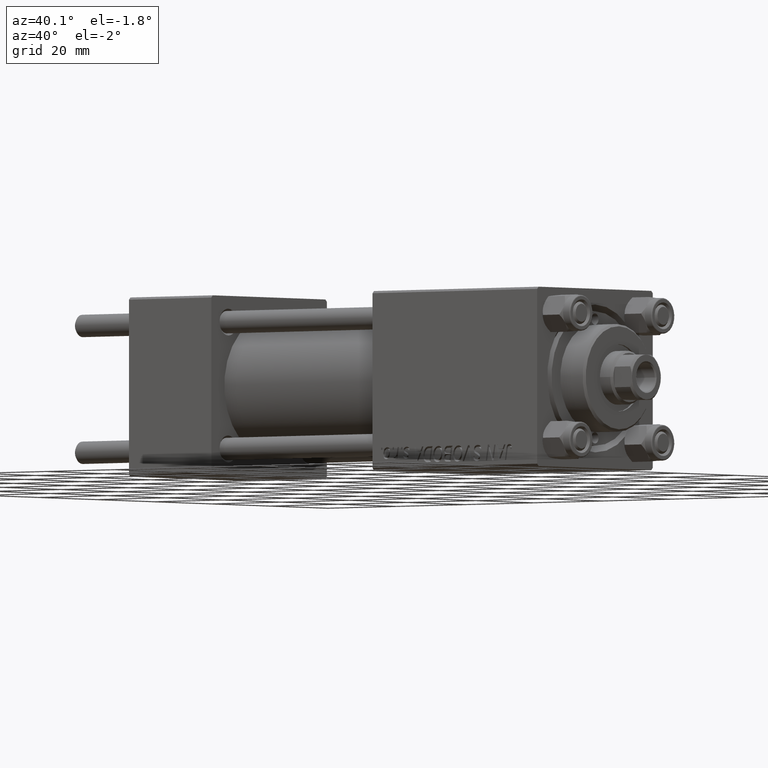
[diagram: clean part render]
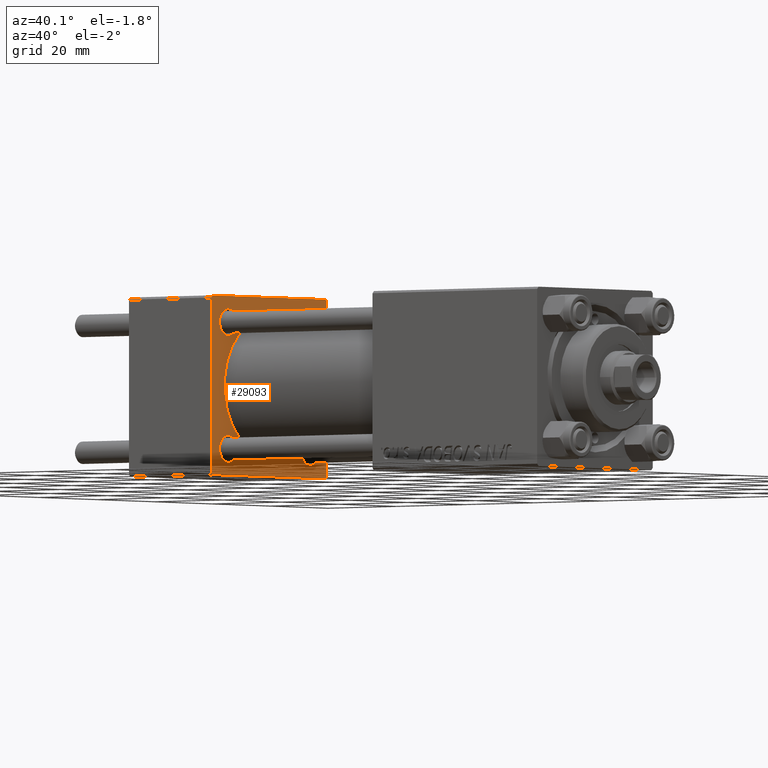
[diagram: same view with one face highlighted and labeled with its STEP entity id]
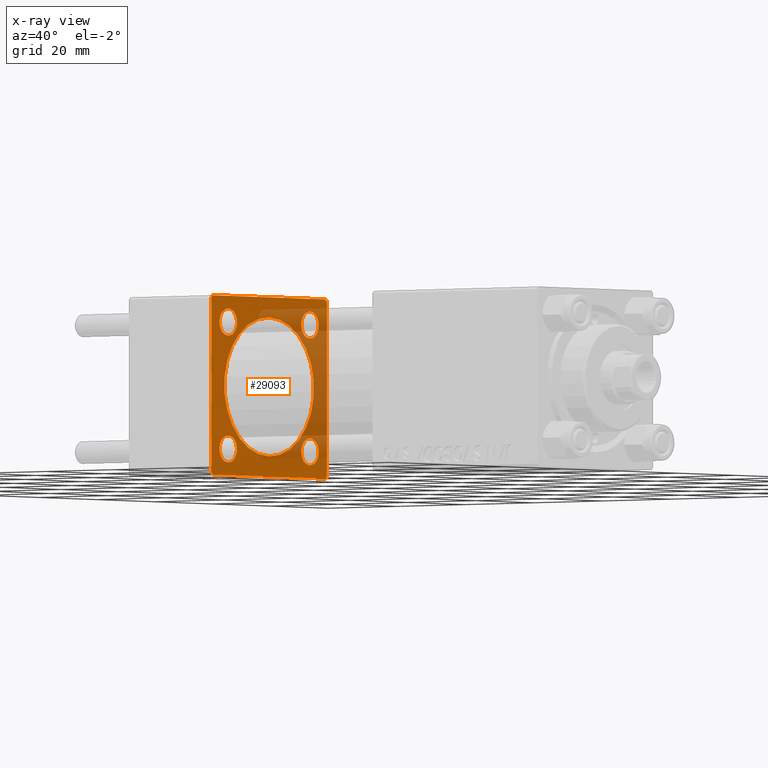
[diagram: x-ray of the same camera — body ghosted, the highlighted face saturated]
A machine part, auxiliary view. The second image highlights one B-rep face of the part: STEP entity #29093.
The next image is the same camera in x-ray: the body ghosted, the highlighted face saturated — about 34% of this face is hidden behind the body in this view.
In plain terms, the highlighted planar face has unit normal (-1, 0, 0).
Its self-contained STEP definition (entity closure, byte-faithful):
#105 = LINE ( 'NONE', #41500, #12896 ) ;
#116 = EDGE_LOOP ( 'NONE', ( #17123, #17661 ) ) ;
#353 = DIRECTION ( 'NONE',  ( 0.000000000000000000, 0.000000000000000000, -1.000000000000000000 ) ) ;
#759 = VERTEX_POINT ( 'NONE', #43805 ) ;
#784 = CIRCLE ( 'NONE', #7224, 3.000000000000000888 ) ;
#1263 = ORIENTED_EDGE ( 'NONE', *, *, #5832, .T. ) ;
#1264 = FACE_BOUND ( 'NONE', #14118, .T. ) ;
#1994 = CIRCLE ( 'NONE', #11718, 2.999999999999976463 ) ;
#2460 = DIRECTION ( 'NONE',  ( -1.000000000000000000, -0.000000000000000000, -0.000000000000000000 ) ) ;
#3033 = DIRECTION ( 'NONE',  ( 0.000000000000000000, 0.000000000000000000, 1.000000000000000000 ) ) ;
#3468 = VERTEX_POINT ( 'NONE', #23424 ) ;
#3586 = CARTESIAN_POINT ( 'NONE',  ( 24.00000000000000000, 14.14999999999999858, 14.15000000000000036 ) ) ;
#3909 = CARTESIAN_POINT ( 'NONE',  ( 24.00000000000000000, 20.00000000000000000, 20.00000000000000000 ) ) ;
#4076 = CARTESIAN_POINT ( 'NONE',  ( 24.00000000000000000, -14.14999999999999503, -17.15000000000000568 ) ) ;
#4308 = CARTESIAN_POINT ( 'NONE',  ( 24.00000000000000000, 20.00000000000000000, -19.50000000000002132 ) ) ;
#4506 = DIRECTION ( 'NONE',  ( 1.000000000000000000, 0.000000000000000000, 0.000000000000000000 ) ) ;
#4995 = CIRCLE ( 'NONE', #47690, 15.50000000000000000 ) ;
#5065 = FACE_OUTER_BOUND ( 'NONE', #39022, .T. ) ;
#5448 = VERTEX_POINT ( 'NONE', #22168 ) ;
#5547 = DIRECTION ( 'NONE',  ( -0.000000000000000000, 0.000000000000000000, 1.000000000000000000 ) ) ;
#5792 = CARTESIAN_POINT ( 'NONE',  ( 24.00000000000000000, -20.00000000000000355, 19.49999999999998224 ) ) ;
#5832 = EDGE_CURVE ( 'NONE', #35848, #12994, #11752, .T. ) ;
#5898 = CARTESIAN_POINT ( 'NONE',  ( 24.00000000000000000, -14.14999999999999503, -11.15000000000000391 ) ) ;
#6590 = VERTEX_POINT ( 'NONE', #16559 ) ;
#7224 = AXIS2_PLACEMENT_3D ( 'NONE', #31366, #19509, #24295 ) ;
#8109 = LINE ( 'NONE', #4308, #10701 ) ;
#8145 = ORIENTED_EDGE ( 'NONE', *, *, #49571, .T. ) ;
#8211 = CARTESIAN_POINT ( 'NONE',  ( 24.00000000000000000, -19.50000000000000711, -20.00000000000000000 ) ) ;
#8703 = DIRECTION ( 'NONE',  ( 0.000000000000000000, 0.7071067811865401342, -0.7071067811865549002 ) ) ;
#8752 = CIRCLE ( 'NONE', #49818, 3.000000000000000888 ) ;
#9332 = CARTESIAN_POINT ( 'NONE',  ( 24.00000000000000000, -14.14999999999999503, 17.15000000000000568 ) ) ;
#9495 = DIRECTION ( 'NONE',  ( 0.000000000000000000, -0.7071067811865425767, 0.7071067811865525687 ) ) ;
#9519 = CARTESIAN_POINT ( 'NONE',  ( 24.00000000000000000, 20.00000000000000000, 19.49999999999999289 ) ) ;
#9674 = VERTEX_POINT ( 'NONE', #38147 ) ;
#10278 = CIRCLE ( 'NONE', #34474, 3.000000000000000888 ) ;
#10701 = VECTOR ( 'NONE', #30577, 1000.000000000000000 ) ;
#10706 = VERTEX_POINT ( 'NONE', #4076 ) ;
#11257 = VERTEX_POINT ( 'NONE', #9519 ) ;
#11474 = CIRCLE ( 'NONE', #28424, 15.50000000000000000 ) ;
#11718 = AXIS2_PLACEMENT_3D ( 'NONE', #33606, #37393, #49000 ) ;
#11752 = LINE ( 'NONE', #3909, #39174 ) ;
#12220 = VECTOR ( 'NONE', #8703, 1000.000000000000000 ) ;
#12231 = CARTESIAN_POINT ( 'NONE',  ( 24.00000000000000000, -14.14999999999999503, -14.15000000000000391 ) ) ;
#12589 = ORIENTED_EDGE ( 'NONE', *, *, #47878, .T. ) ;
#12896 = VECTOR ( 'NONE', #22847, 1000.000000000000000 ) ;
#12920 = DIRECTION ( 'NONE',  ( 0.000000000000000000, 0.000000000000000000, 1.000000000000000000 ) ) ;
#12994 = VERTEX_POINT ( 'NONE', #16321 ) ;
#13410 = EDGE_LOOP ( 'NONE', ( #47782, #14991 ) ) ;
#13731 = CARTESIAN_POINT ( 'NONE',  ( 24.00000000000000000, -20.00000000000000355, 19.99999999999998934 ) ) ;
#14017 = EDGE_CURVE ( 'NONE', #45669, #45728, #10278, .T. ) ;
#14118 = EDGE_LOOP ( 'NONE', ( #23809, #29408 ) ) ;
#14665 = ORIENTED_EDGE ( 'NONE', *, *, #36949, .F. ) ;
#14940 = CARTESIAN_POINT ( 'NONE',  ( 24.00000000000000000, -20.00000000000000355, 19.49999999999998224 ) ) ;
#14991 = ORIENTED_EDGE ( 'NONE', *, *, #32930, .T. ) ;
#15280 = CARTESIAN_POINT ( 'NONE',  ( 24.00000000000000000, 20.00000000000000000, 20.00000000000000000 ) ) ;
#16321 = CARTESIAN_POINT ( 'NONE',  ( 24.00000000000000000, -19.49999999999999289, 19.99999999999998934 ) ) ;
#16559 = CARTESIAN_POINT ( 'NONE',  ( 24.00000000000000000, 19.50000000000000711, -20.00000000000000711 ) ) ;
#16724 = CARTESIAN_POINT ( 'NONE',  ( 24.00000000000000000, 14.14999999999999858, 14.15000000000000036 ) ) ;
#17123 = ORIENTED_EDGE ( 'NONE', *, *, #47057, .F. ) ;
#17661 = ORIENTED_EDGE ( 'NONE', *, *, #45891, .F. ) ;
#18362 = CARTESIAN_POINT ( 'NONE',  ( 24.00000000000000000, 20.00000000000000000, -19.50000000000002132 ) ) ;
#19014 = DIRECTION ( 'NONE',  ( 0.000000000000000000, 0.000000000000000000, 1.000000000000000000 ) ) ;
#19050 = DIRECTION ( 'NONE',  ( -1.000000000000000000, -0.000000000000000000, -0.000000000000000000 ) ) ;
#19509 = DIRECTION ( 'NONE',  ( -1.000000000000000000, -0.000000000000000000, -0.000000000000000000 ) ) ;
#19551 = DIRECTION ( 'NONE',  ( -1.000000000000000000, -0.000000000000000000, -0.000000000000000000 ) ) ;
#19627 = CARTESIAN_POINT ( 'NONE',  ( 24.00000000000000000, 0.000000000000000000, 0.000000000000000000 ) ) ;
#19833 = VERTEX_POINT ( 'NONE', #5898 ) ;
#19877 = DIRECTION ( 'NONE',  ( 0.000000000000000000, 0.000000000000000000, 1.000000000000000000 ) ) ;
#20126 = DIRECTION ( 'NONE',  ( 1.000000000000000000, 0.000000000000000000, 0.000000000000000000 ) ) ;
#20252 = FACE_BOUND ( 'NONE', #26591, .T. ) ;
#21628 = LINE ( 'NONE', #23767, #38094 ) ;
#21704 = CARTESIAN_POINT ( 'NONE',  ( 24.00000000000000000, -14.14999999999999503, 11.15000000000000391 ) ) ;
#21864 = CIRCLE ( 'NONE', #24338, 2.999999999999976463 ) ;
#22168 = CARTESIAN_POINT ( 'NONE',  ( 24.00000000000000000, -20.00000000000000000, -19.49999999999999645 ) ) ;
#22499 = DIRECTION ( 'NONE',  ( -1.000000000000000000, -0.000000000000000000, -0.000000000000000000 ) ) ;
#22571 = CARTESIAN_POINT ( 'NONE',  ( 24.00000000000000000, -14.14999999999999503, 14.15000000000000391 ) ) ;
#22768 = AXIS2_PLACEMENT_3D ( 'NONE', #12231, #19050, #34433 ) ;
#22847 = DIRECTION ( 'NONE',  ( 0.000000000000000000, -1.000000000000000000, 1.734723475976807094E-16 ) ) ;
#23249 = ORIENTED_EDGE ( 'NONE', *, *, #44533, .T. ) ;
#23424 = CARTESIAN_POINT ( 'NONE',  ( 24.00000000000000000, 14.14999999999999858, -11.15000000000002700 ) ) ;
#23756 = DIRECTION ( 'NONE',  ( 0.000000000000000000, 0.000000000000000000, 1.000000000000000000 ) ) ;
#23767 = CARTESIAN_POINT ( 'NONE',  ( 24.00000000000000000, 19.50000000000000000, 20.00000000000000000 ) ) ;
#23809 = ORIENTED_EDGE ( 'NONE', *, *, #46546, .T. ) ;
#24295 = DIRECTION ( 'NONE',  ( 0.000000000000000000, 0.000000000000000000, 1.000000000000000000 ) ) ;
#24338 = AXIS2_PLACEMENT_3D ( 'NONE', #47441, #47201, #23756 ) ;
#24516 = PLANE ( 'NONE',  #39281 ) ;
#25068 = CIRCLE ( 'NONE', #47617, 2.999999999999976463 ) ;
#25510 = EDGE_CURVE ( 'NONE', #9674, #38387, #25068, .T. ) ;
#25858 = EDGE_CURVE ( 'NONE', #5448, #759, #27910, .T. ) ;
#26591 = EDGE_LOOP ( 'NONE', ( #39960, #28499 ) ) ;
#27202 = EDGE_CURVE ( 'NONE', #46291, #3468, #1994, .T. ) ;
#27910 = LINE ( 'NONE', #8211, #12220 ) ;
#28309 = FACE_BOUND ( 'NONE', #13410, .T. ) ;
#28331 = ORIENTED_EDGE ( 'NONE', *, *, #48701, .T. ) ;
#28424 = AXIS2_PLACEMENT_3D ( 'NONE', #19627, #20126, #19877 ) ;
#28499 = ORIENTED_EDGE ( 'NONE', *, *, #43502, .T. ) ;
#28882 = DIRECTION ( 'NONE',  ( 0.000000000000000000, 8.673617379884036705E-17, -1.000000000000000000 ) ) ;
#29093 = ADVANCED_FACE ( 'NONE', ( #1264, #47474, #28309, #20252, #43681, #5065 ), #24516, .F. ) ;
#29408 = ORIENTED_EDGE ( 'NONE', *, *, #36616, .T. ) ;
#29499 = VERTEX_POINT ( 'NONE', #18362 ) ;
#30088 = DIRECTION ( 'NONE',  ( -0.000000000000000000, -0.7071067811865500152, -0.7071067811865451302 ) ) ;
#30162 = CARTESIAN_POINT ( 'NONE',  ( 24.00000000000000000, 19.50000000000000000, 20.00000000000000000 ) ) ;
#30577 = DIRECTION ( 'NONE',  ( -0.000000000000000000, 0.7071067811865524577, 0.7071067811865426878 ) ) ;
#30909 = CARTESIAN_POINT ( 'NONE',  ( 24.00000000000000000, 0.000000000000000000, 15.50000000000000000 ) ) ;
#30952 = VECTOR ( 'NONE', #30088, 1000.000000000000114 ) ;
#31366 = CARTESIAN_POINT ( 'NONE',  ( 24.00000000000000000, -14.14999999999999503, -14.15000000000000391 ) ) ;
#32160 = ORIENTED_EDGE ( 'NONE', *, *, #42503, .F. ) ;
#32328 = CARTESIAN_POINT ( 'NONE',  ( 24.00000000000000000, 0.000000000000000000, 0.000000000000000000 ) ) ;
#32489 = CARTESIAN_POINT ( 'NONE',  ( 24.00000000000000000, 1.898202538678397557E-15, -15.50000000000000000 ) ) ;
#32930 = EDGE_CURVE ( 'NONE', #45728, #45669, #8752, .T. ) ;
#33606 = CARTESIAN_POINT ( 'NONE',  ( 24.00000000000000000, 14.14999999999999858, -14.15000000000000036 ) ) ;
#33649 = EDGE_LOOP ( 'NONE', ( #47968, #35434 ) ) ;
#33956 = VECTOR ( 'NONE', #28882, 1000.000000000000000 ) ;
#34433 = DIRECTION ( 'NONE',  ( 0.000000000000000000, 0.000000000000000000, 1.000000000000000000 ) ) ;
#34447 = LINE ( 'NONE', #15280, #36294 ) ;
#34474 = AXIS2_PLACEMENT_3D ( 'NONE', #22571, #19551, #34926 ) ;
#34926 = DIRECTION ( 'NONE',  ( 0.000000000000000000, 0.000000000000000000, 1.000000000000000000 ) ) ;
#35434 = ORIENTED_EDGE ( 'NONE', *, *, #43911, .T. ) ;
#35795 = CARTESIAN_POINT ( 'NONE',  ( 24.00000000000000000, 0.000000000000000000, 0.000000000000000000 ) ) ;
#35848 = VERTEX_POINT ( 'NONE', #30162 ) ;
#36294 = VECTOR ( 'NONE', #353, 1000.000000000000000 ) ;
#36616 = EDGE_CURVE ( 'NONE', #19833, #10706, #784, .T. ) ;
#36949 = EDGE_CURVE ( 'NONE', #6590, #759, #105, .T. ) ;
#37393 = DIRECTION ( 'NONE',  ( -1.000000000000000000, -0.000000000000000000, -0.000000000000000000 ) ) ;
#37628 = CARTESIAN_POINT ( 'NONE',  ( 24.00000000000000000, -14.14999999999999503, 14.15000000000000391 ) ) ;
#38094 = VECTOR ( 'NONE', #9495, 999.9999999999998863 ) ;
#38147 = CARTESIAN_POINT ( 'NONE',  ( 24.00000000000000000, 14.14999999999999858, 11.15000000000002700 ) ) ;
#38387 = VERTEX_POINT ( 'NONE', #47984 ) ;
#38872 = CIRCLE ( 'NONE', #22768, 3.000000000000000888 ) ;
#39022 = EDGE_LOOP ( 'NONE', ( #14665, #28331, #32160, #12589, #1263, #8145, #23249, #49483 ) ) ;
#39174 = VECTOR ( 'NONE', #42539, 1000.000000000000000 ) ;
#39281 = AXIS2_PLACEMENT_3D ( 'NONE', #32328, #46992, #5547 ) ;
#39960 = ORIENTED_EDGE ( 'NONE', *, *, #25510, .T. ) ;
#40247 = CARTESIAN_POINT ( 'NONE',  ( 24.00000000000000000, 14.14999999999999858, -17.14999999999997726 ) ) ;
#41500 = CARTESIAN_POINT ( 'NONE',  ( 24.00000000000000000, 20.00000000000000000, -20.00000000000000711 ) ) ;
#41646 = VERTEX_POINT ( 'NONE', #30909 ) ;
#41933 = LINE ( 'NONE', #14940, #30952 ) ;
#42366 = DIRECTION ( 'NONE',  ( 0.000000000000000000, 0.000000000000000000, 1.000000000000000000 ) ) ;
#42503 = EDGE_CURVE ( 'NONE', #11257, #29499, #34447, .T. ) ;
#42539 = DIRECTION ( 'NONE',  ( 0.000000000000000000, -1.000000000000000000, -2.602085213965210149E-16 ) ) ;
#43502 = EDGE_CURVE ( 'NONE', #38387, #9674, #43585, .T. ) ;
#43585 = CIRCLE ( 'NONE', #49229, 2.999999999999976463 ) ;
#43681 = FACE_BOUND ( 'NONE', #116, .T. ) ;
#43805 = CARTESIAN_POINT ( 'NONE',  ( 24.00000000000000000, -19.50000000000000711, -20.00000000000000000 ) ) ;
#43911 = EDGE_CURVE ( 'NONE', #3468, #46291, #21864, .T. ) ;
#44508 = LINE ( 'NONE', #13731, #33956 ) ;
#44533 = EDGE_CURVE ( 'NONE', #49768, #5448, #44508, .T. ) ;
#45669 = VERTEX_POINT ( 'NONE', #21704 ) ;
#45728 = VERTEX_POINT ( 'NONE', #9332 ) ;
#45891 = EDGE_CURVE ( 'NONE', #46019, #41646, #4995, .T. ) ;
#46019 = VERTEX_POINT ( 'NONE', #32489 ) ;
#46254 = DIRECTION ( 'NONE',  ( -1.000000000000000000, -0.000000000000000000, -0.000000000000000000 ) ) ;
#46291 = VERTEX_POINT ( 'NONE', #40247 ) ;
#46546 = EDGE_CURVE ( 'NONE', #10706, #19833, #38872, .T. ) ;
#46992 = DIRECTION ( 'NONE',  ( -1.000000000000000000, 0.000000000000000000, -0.000000000000000000 ) ) ;
#47057 = EDGE_CURVE ( 'NONE', #41646, #46019, #11474, .T. ) ;
#47201 = DIRECTION ( 'NONE',  ( -1.000000000000000000, -0.000000000000000000, -0.000000000000000000 ) ) ;
#47441 = CARTESIAN_POINT ( 'NONE',  ( 24.00000000000000000, 14.14999999999999858, -14.15000000000000036 ) ) ;
#47474 = FACE_BOUND ( 'NONE', #33649, .T. ) ;
#47617 = AXIS2_PLACEMENT_3D ( 'NONE', #16724, #2460, #12920 ) ;
#47690 = AXIS2_PLACEMENT_3D ( 'NONE', #35795, #4506, #42366 ) ;
#47782 = ORIENTED_EDGE ( 'NONE', *, *, #14017, .T. ) ;
#47878 = EDGE_CURVE ( 'NONE', #11257, #35848, #21628, .T. ) ;
#47968 = ORIENTED_EDGE ( 'NONE', *, *, #27202, .T. ) ;
#47984 = CARTESIAN_POINT ( 'NONE',  ( 24.00000000000000000, 14.14999999999999858, 17.14999999999997726 ) ) ;
#48701 = EDGE_CURVE ( 'NONE', #6590, #29499, #8109, .T. ) ;
#49000 = DIRECTION ( 'NONE',  ( 0.000000000000000000, 0.000000000000000000, 1.000000000000000000 ) ) ;
#49229 = AXIS2_PLACEMENT_3D ( 'NONE', #3586, #46254, #19014 ) ;
#49483 = ORIENTED_EDGE ( 'NONE', *, *, #25858, .T. ) ;
#49571 = EDGE_CURVE ( 'NONE', #12994, #49768, #41933, .T. ) ;
#49768 = VERTEX_POINT ( 'NONE', #5792 ) ;
#49818 = AXIS2_PLACEMENT_3D ( 'NONE', #37628, #22499, #3033 ) ;